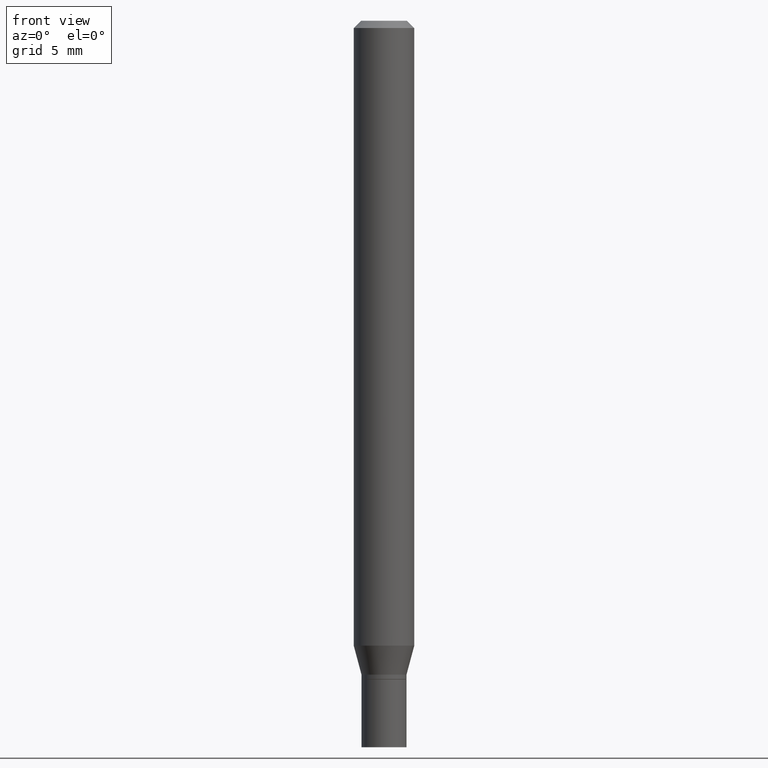
[diagram: clean part render]
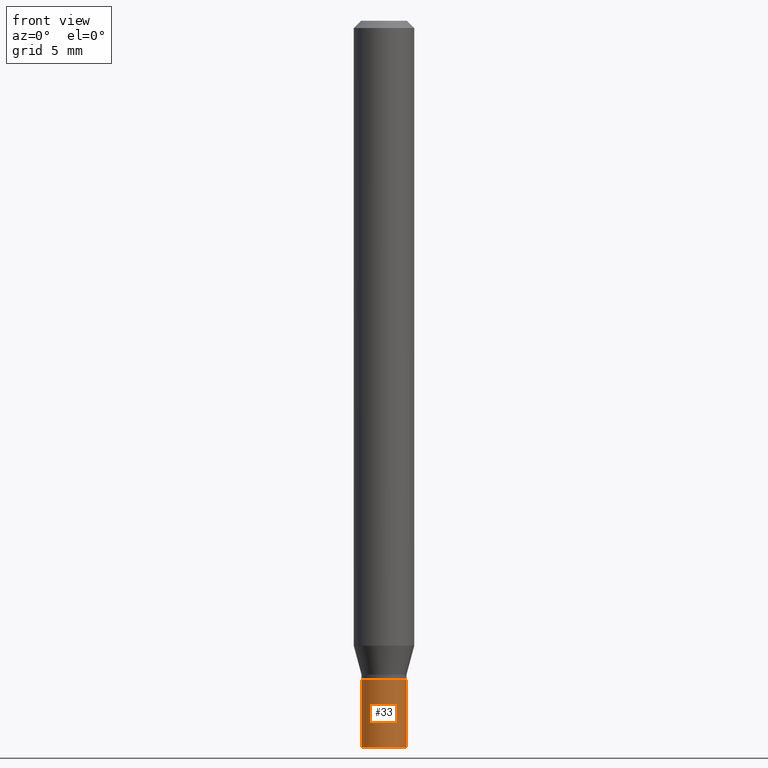
[diagram: same view with one face highlighted and labeled with its STEP entity id]
A machine part, front view. The second image highlights one B-rep face of the part: STEP entity #33.
In plain terms, the highlighted cylindrical surface (edge-blend (fillet) strip) has radius 1.1811 mm, axis along (-0, 0, 1).
Its self-contained STEP definition (entity closure, byte-faithful):
#10 = EDGE_CURVE ( 'NONE', #72, #251, #38, .T. ) ;
#33 = ADVANCED_FACE ( 'NONE', ( #324 ), #435, .T. ) ;
#34 = DIRECTION ( 'NONE',  ( -2.445468806185136877E-29, 3.491481338843145188E-15, 1.000000000000000000 ) ) ;
#37 = CIRCLE ( 'NONE', #44, 0.04649999999999999967 ) ;
#38 = LINE ( 'NONE', #177, #440 ) ;
#39 = EDGE_CURVE ( 'NONE', #270, #54, #175, .T. ) ;
#44 = AXIS2_PLACEMENT_3D ( 'NONE', #411, #85, #50 ) ;
#50 = DIRECTION ( 'NONE',  ( 1.000000000000000000, -6.982962677686260400E-15, 0.000000000000000000 ) ) ;
#54 = VERTEX_POINT ( 'NONE', #290 ) ;
#55 = AXIS2_PLACEMENT_3D ( 'NONE', #182, #110, #326 ) ;
#67 = EDGE_CURVE ( 'NONE', #251, #54, #75, .T. ) ;
#68 = CARTESIAN_POINT ( 'NONE',  ( 3.325837576411786624E-29, -4.748414620826679034E-15, -1.360000000000000320 ) ) ;
#72 = VERTEX_POINT ( 'NONE', #464 ) ;
#75 = CIRCLE ( 'NONE', #426, 0.04649999999999999967 ) ;
#85 = DIRECTION ( 'NONE',  ( -2.445468806185136597E-29, 3.491481338843145583E-15, 1.000000000000000000 ) ) ;
#110 = DIRECTION ( 'NONE',  ( -2.445468806185136597E-29, 3.491481338843145583E-15, 1.000000000000000000 ) ) ;
#144 = DIRECTION ( 'NONE',  ( -2.445468806185136877E-29, 3.491481338843145188E-15, 1.000000000000000000 ) ) ;
#148 = DIRECTION ( 'NONE',  ( -2.445468806185136597E-29, 3.491481338843145583E-15, 1.000000000000000000 ) ) ;
#165 = ORIENTED_EDGE ( 'NONE', *, *, #10, .F. ) ;
#175 = LINE ( 'NONE', #320, #343 ) ;
#177 = CARTESIAN_POINT ( 'NONE',  ( -0.04649999999999999967, 3.304023721284465841E-16, -2.287304816968531530E-30 ) ) ;
#182 = CARTESIAN_POINT ( 'NONE',  ( 0.000000000000000000, 0.000000000000000000, 0.000000000000000000 ) ) ;
#204 = EDGE_LOOP ( 'NONE', ( #165, #315, #379, #250 ) ) ;
#250 = ORIENTED_EDGE ( 'NONE', *, *, #67, .F. ) ;
#251 = VERTEX_POINT ( 'NONE', #265 ) ;
#265 = CARTESIAN_POINT ( 'NONE',  ( -0.04649999999999999967, -4.662415942417251725E-15, -1.360000000000000320 ) ) ;
#270 = VERTEX_POINT ( 'NONE', #378 ) ;
#290 = CARTESIAN_POINT ( 'NONE',  ( 0.04649999999999999967, -5.073122385339090530E-15, -1.360000000000000320 ) ) ;
#315 = ORIENTED_EDGE ( 'NONE', *, *, #331, .T. ) ;
#320 = CARTESIAN_POINT ( 'NONE',  ( 0.04649999999999999967, -3.247077645124114474E-16, 2.267422200745110326E-30 ) ) ;
#324 = FACE_OUTER_BOUND ( 'NONE', #204, .T. ) ;
#326 = DIRECTION ( 'NONE',  ( 1.000000000000000000, -6.982962677686267499E-15, 4.876176775795936353E-29 ) ) ;
#331 = EDGE_CURVE ( 'NONE', #72, #270, #37, .T. ) ;
#343 = VECTOR ( 'NONE', #144, 39.37007874015748143 ) ;
#378 = CARTESIAN_POINT ( 'NONE',  ( 0.04649999999999999967, -5.561929772777129673E-15, -1.500000000000000222 ) ) ;
#379 = ORIENTED_EDGE ( 'NONE', *, *, #39, .T. ) ;
#411 = CARTESIAN_POINT ( 'NONE',  ( 3.668203209277704895E-29, -5.237222008264718177E-15, -1.500000000000000222 ) ) ;
#426 = AXIS2_PLACEMENT_3D ( 'NONE', #68, #148, #428 ) ;
#428 = DIRECTION ( 'NONE',  ( 1.000000000000000000, -6.982962677686260400E-15, 0.000000000000000000 ) ) ;
#435 = CYLINDRICAL_SURFACE ( 'NONE', #55, 0.04649999999999999967 ) ;
#440 = VECTOR ( 'NONE', #34, 39.37007874015748143 ) ;
#464 = CARTESIAN_POINT ( 'NONE',  ( -0.04649999999999999967, -4.662415942417251725E-15, -1.500000000000000222 ) ) ;